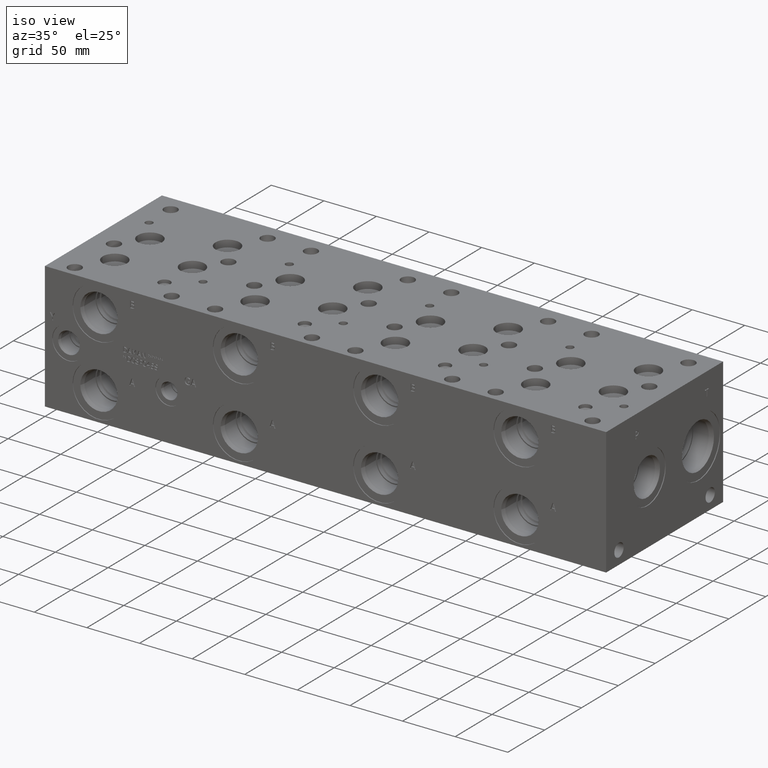
[diagram: clean part render]
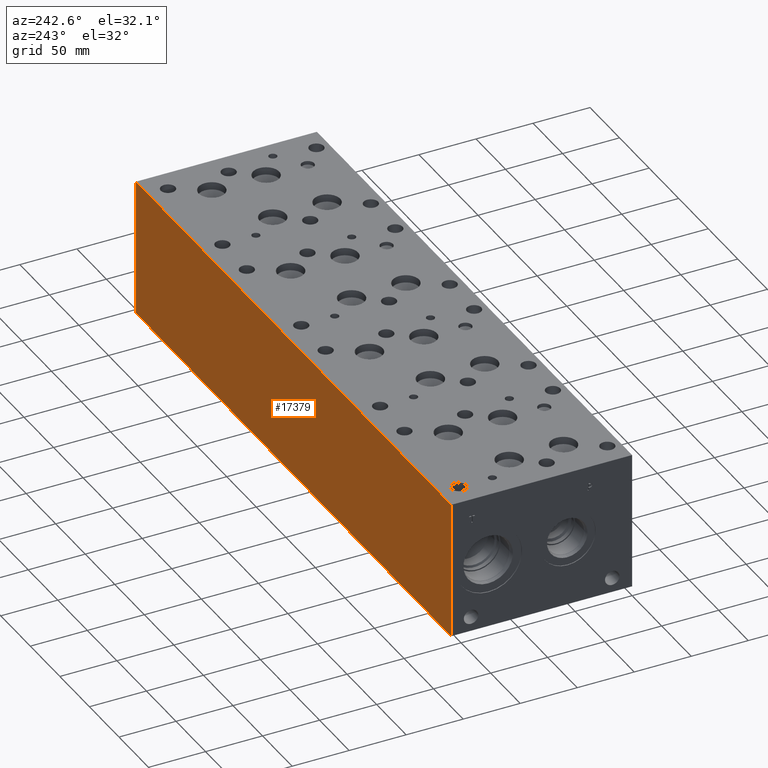
[diagram: tour spotlight — one face highlighted and labeled with its STEP entity id]
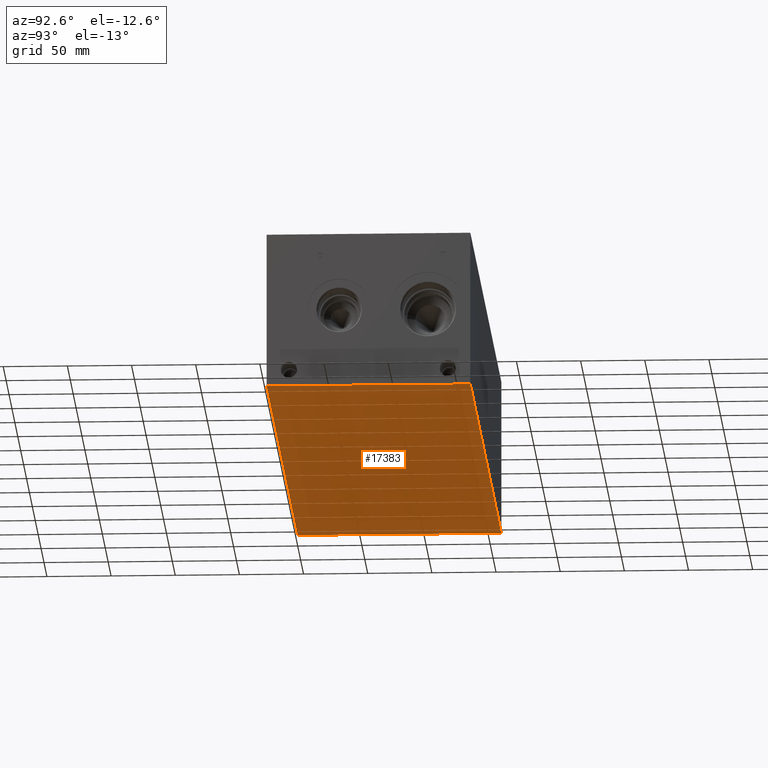
[diagram: tour spotlight — one face highlighted and labeled with its STEP entity id]
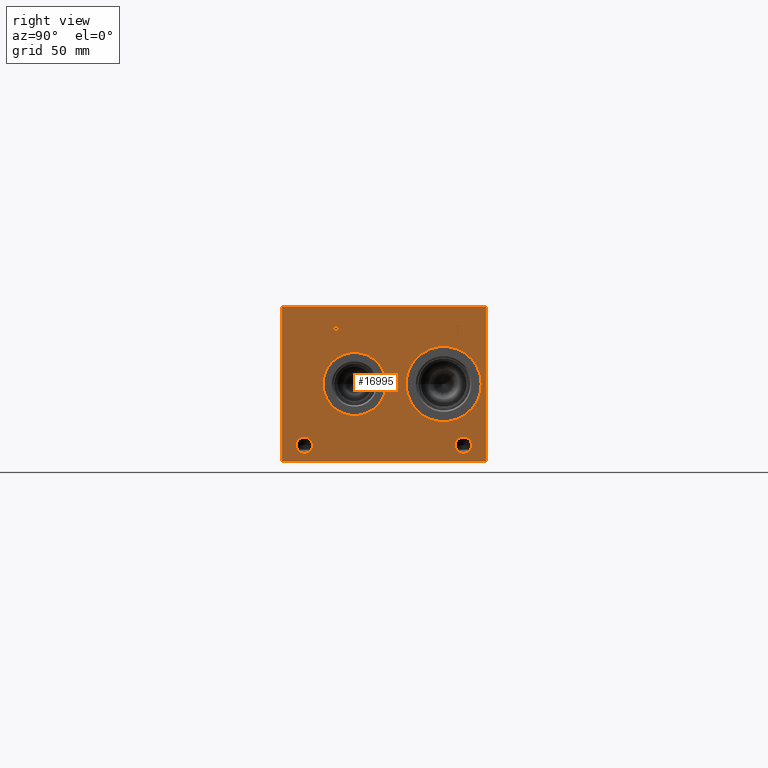
[diagram: tour spotlight — one face highlighted and labeled with its STEP entity id]
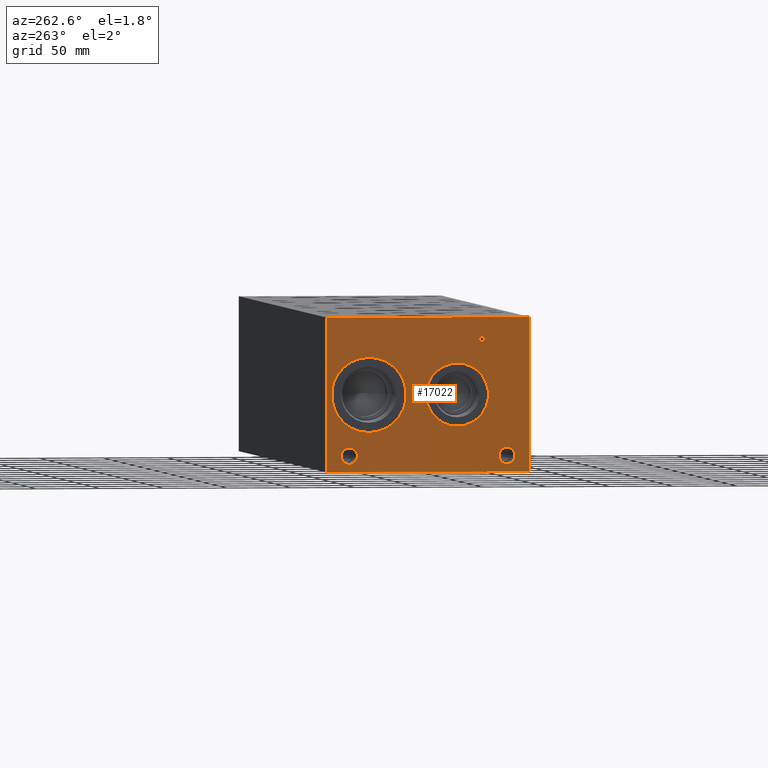
[diagram: tour spotlight — one face highlighted and labeled with its STEP entity id]
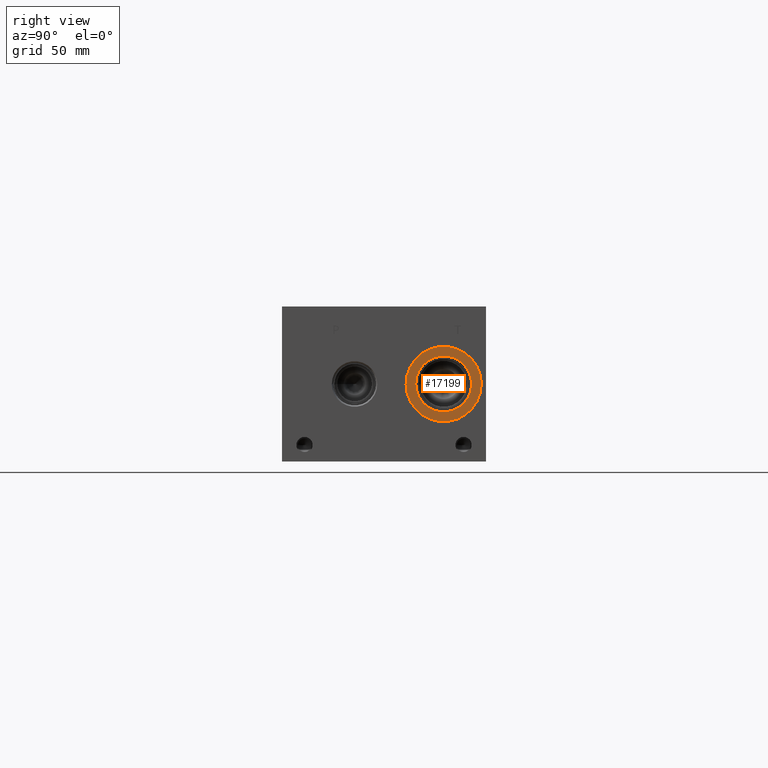
[diagram: tour spotlight — one face highlighted and labeled with its STEP entity id]
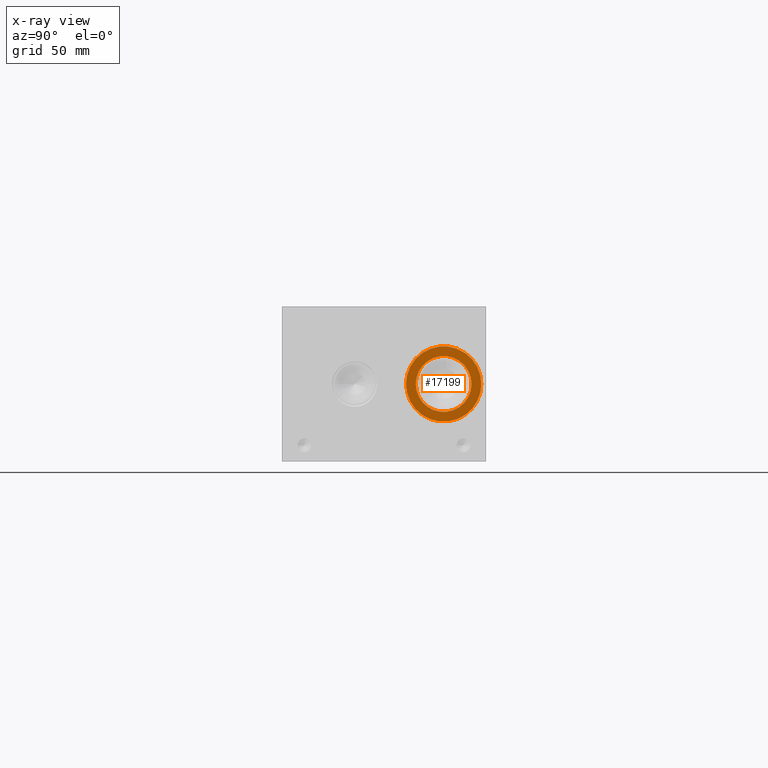
[diagram: x-ray of the same camera — body ghosted, this tour face saturated]
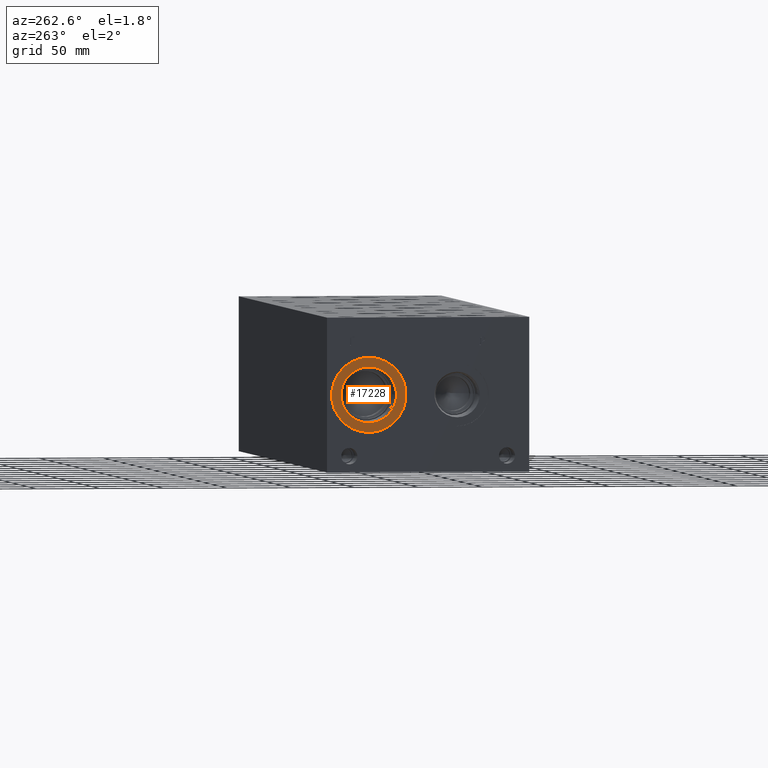
[diagram: tour spotlight — one face highlighted and labeled with its STEP entity id]
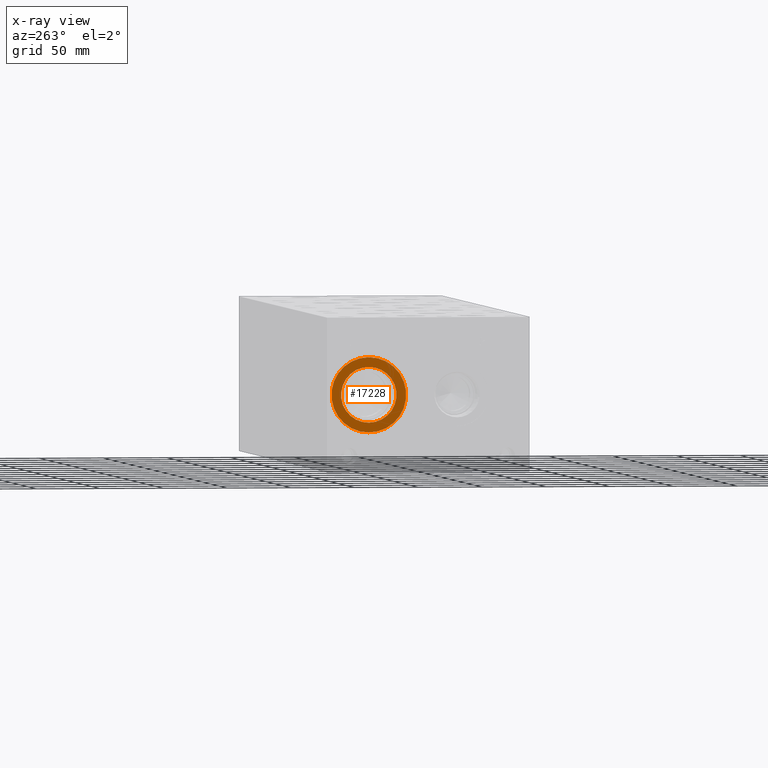
[diagram: x-ray of the same camera — body ghosted, this tour face saturated]
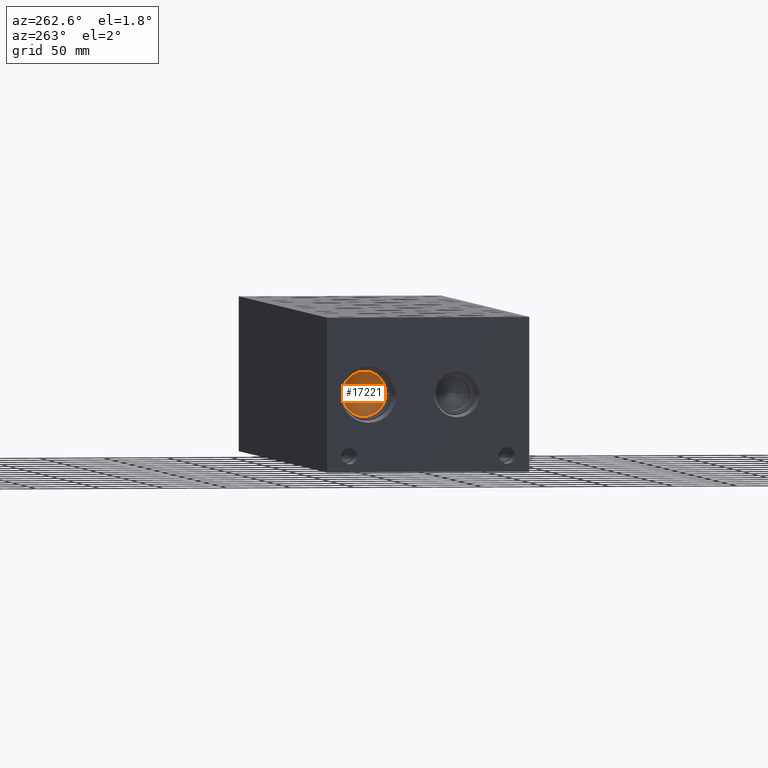
[diagram: tour spotlight — one face highlighted and labeled with its STEP entity id]
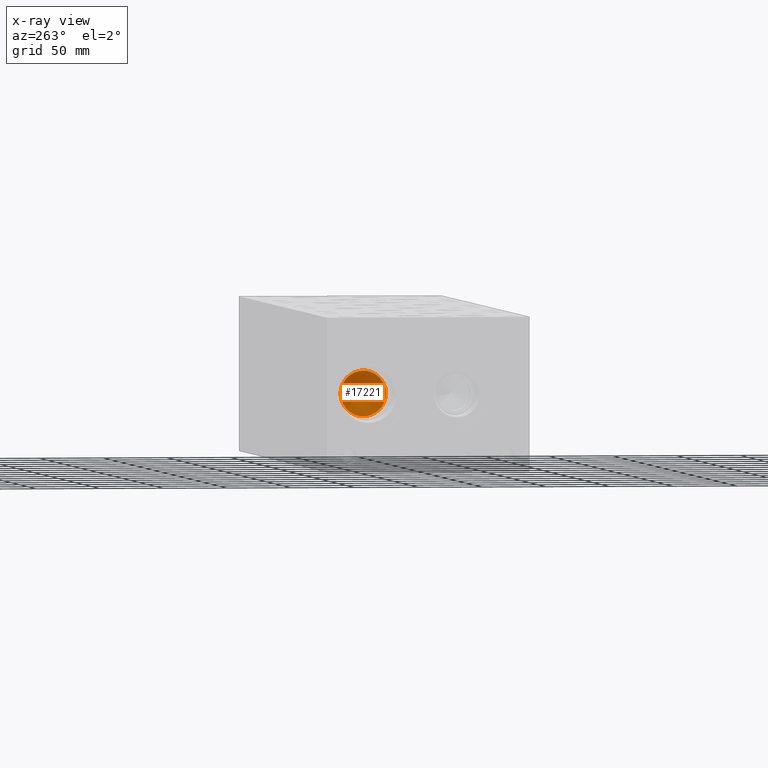
[diagram: x-ray of the same camera — body ghosted, this tour face saturated]
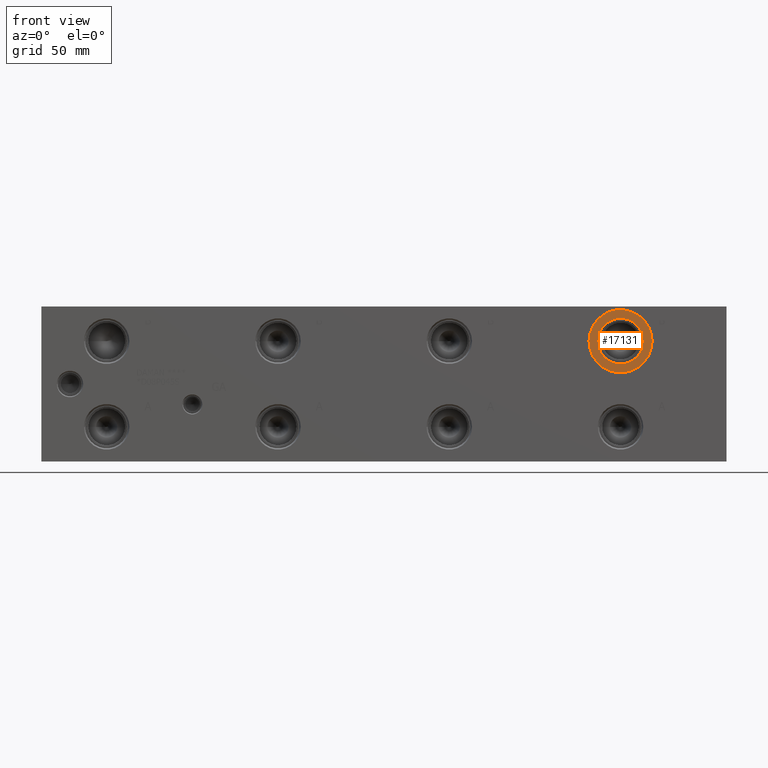
[diagram: tour spotlight — one face highlighted and labeled with its STEP entity id]
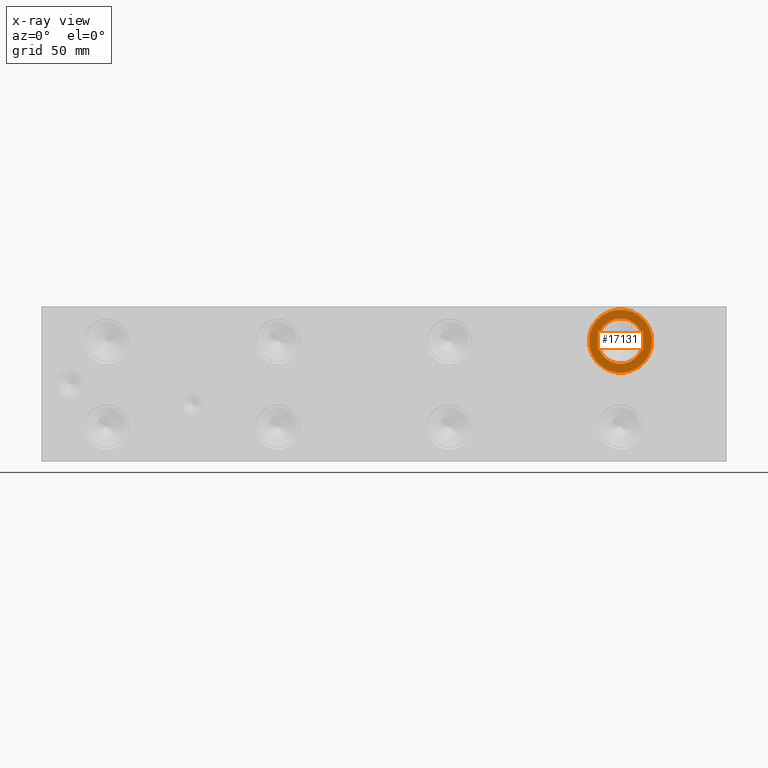
[diagram: x-ray of the same camera — body ghosted, this tour face saturated]
A machine part: a face-by-face anatomy tour. The part has 917 B-rep faces; the first image is the clean iso view, then the 8 largest visible faces are spotlighted one at a time (largest first), each with its STEP entity span.

Face 1 — auxiliary view, entity #17379. In plain terms, the highlighted planar face has unit normal (0, 1, 0).
Definition (entity closure, byte-faithful):
#2536=FACE_OUTER_BOUND('',#3585,.T.);
#3585=EDGE_LOOP('',(#15351,#15352,#15353,#15354));
#4724=LINE('',#28052,#6183);
#4784=LINE('',#28325,#6243);
#5099=LINE('',#30207,#6558);
#5100=LINE('',#30208,#6559);
#6183=VECTOR('',#20557,10.);
#6243=VECTOR('',#20671,10.);
#6558=VECTOR('',#22824,10.);
#6559=VECTOR('',#22825,10.);
#7534=VERTEX_POINT('',#28049);
#7535=VERTEX_POINT('',#28051);
#7592=VERTEX_POINT('',#28321);
#7593=VERTEX_POINT('',#28323);
#9692=EDGE_CURVE('',#7534,#7535,#4724,.T.);
#9776=EDGE_CURVE('',#7592,#7593,#4784,.T.);
#10653=EDGE_CURVE('',#7534,#7592,#5099,.T.);
#10654=EDGE_CURVE('',#7535,#7593,#5100,.T.);
#15351=ORIENTED_EDGE('',*,*,#10653,.T.);
#15352=ORIENTED_EDGE('',*,*,#9776,.T.);
#15353=ORIENTED_EDGE('',*,*,#10654,.F.);
#15354=ORIENTED_EDGE('',*,*,#9692,.F.);
#15921=PLANE('',#18718);
#17379=ADVANCED_FACE('',(#2536),#15921,.T.);
#18718=AXIS2_PLACEMENT_3D('',#30206,#22822,#22823);
#20557=DIRECTION('',(0.,0.,1.));
#20671=DIRECTION('',(0.,0.,1.));
#22822=DIRECTION('center_axis',(0.,1.,0.));
#22823=DIRECTION('ref_axis',(-1.,0.,0.));
#22824=DIRECTION('',(-1.,0.,0.));
#22825=DIRECTION('',(-1.,0.,0.));
#28049=CARTESIAN_POINT('',(533.4,158.75,0.));
#28051=CARTESIAN_POINT('',(533.4,158.75,120.65));
#28052=CARTESIAN_POINT('',(533.4,158.75,0.));
#28321=CARTESIAN_POINT('',(0.,158.75,0.));
#28323=CARTESIAN_POINT('',(0.,158.75,120.65));
#28325=CARTESIAN_POINT('',(0.,158.75,0.));
#30206=CARTESIAN_POINT('Origin',(533.4,158.75,0.));
#30207=CARTESIAN_POINT('',(533.4,158.75,0.));
#30208=CARTESIAN_POINT('',(533.4,158.75,120.65));

Face 2 — auxiliary view, entity #17383. In plain terms, the highlighted planar face has unit normal (0, 0, 1).
Definition (entity closure, byte-faithful):
#2540=FACE_OUTER_BOUND('',#3641,.T.);
#3641=EDGE_LOOP('',(#15477,#15478,#15479,#15480));
#3675=LINE('',#22905,#5134);
#4723=LINE('',#28050,#6182);
#4782=LINE('',#28322,#6241);
#5099=LINE('',#30207,#6558);
#5134=VECTOR('',#18784,10.);
#6182=VECTOR('',#20556,10.);
#6241=VECTOR('',#20669,10.);
#6558=VECTOR('',#22824,10.);
#6582=VERTEX_POINT('',#22903);
#6583=VERTEX_POINT('',#22904);
#7534=VERTEX_POINT('',#28049);
#7592=VERTEX_POINT('',#28321);
#8275=EDGE_CURVE('',#6582,#6583,#3675,.T.);
#9691=EDGE_CURVE('',#6583,#7534,#4723,.T.);
#9774=EDGE_CURVE('',#7592,#6582,#4782,.T.);
#10653=EDGE_CURVE('',#7534,#7592,#5099,.T.);
#15477=ORIENTED_EDGE('',*,*,#8275,.F.);
#15478=ORIENTED_EDGE('',*,*,#9774,.F.);
#15479=ORIENTED_EDGE('',*,*,#10653,.F.);
#15480=ORIENTED_EDGE('',*,*,#9691,.F.);
#15925=PLANE('',#18722);
#17383=ADVANCED_FACE('',(#2540),#15925,.F.);
#18722=AXIS2_PLACEMENT_3D('',#30212,#22832,#22833);
#18784=DIRECTION('',(1.,0.,0.));
#20556=DIRECTION('',(0.,1.,0.));
#20669=DIRECTION('',(0.,-1.,0.));
#22824=DIRECTION('',(-1.,0.,0.));
#22832=DIRECTION('center_axis',(0.,0.,1.));
#22833=DIRECTION('ref_axis',(1.,0.,0.));
#22903=CARTESIAN_POINT('',(0.,0.,0.));
#22904=CARTESIAN_POINT('',(533.4,0.,0.));
#22905=CARTESIAN_POINT('',(0.,0.,0.));
#28049=CARTESIAN_POINT('',(533.4,158.75,0.));
#28050=CARTESIAN_POINT('',(533.4,0.,0.));
#28321=CARTESIAN_POINT('',(0.,158.75,0.));
#28322=CARTESIAN_POINT('',(0.,158.75,0.));
#30207=CARTESIAN_POINT('',(533.4,158.75,0.));
#30212=CARTESIAN_POINT('Origin',(266.7,79.375,0.));

Face 3 — right view, entity #16995. In plain terms, the highlighted planar face has unit normal (1, 0, 0).
Definition (entity closure, byte-faithful):
#506=CIRCLE('',#17773,29.2862);
#507=CIRCLE('',#17774,29.2862);
#508=CIRCLE('',#17775,24.5618);
#509=CIRCLE('',#17776,24.5618);
#510=CIRCLE('',#17777,6.35);
#511=CIRCLE('',#17778,6.35);
#512=CIRCLE('',#17779,6.35);
#513=CIRCLE('',#17780,6.35);
#1416=B_SPLINE_CURVE_WITH_KNOTS('',2,(#27951,#27952,#27953,#27954),
 .UNSPECIFIED.,.F.,.F.,(3,1,3),(0.,1.,2.),.UNSPECIFIED.);
#1418=B_SPLINE_CURVE_WITH_KNOTS('',2,(#27972,#27973,#27974,#27975),
 .UNSPECIFIED.,.F.,.F.,(3,1,3),(0.,1.,2.),.UNSPECIFIED.);
#1420=B_SPLINE_CURVE_WITH_KNOTS('',2,(#28021,#28022,#28023,#28024),
 .UNSPECIFIED.,.F.,.F.,(3,1,3),(0.,1.,2.),.UNSPECIFIED.);
#1422=B_SPLINE_CURVE_WITH_KNOTS('',2,(#28039,#28040,#28041,#28042),
 .UNSPECIFIED.,.F.,.F.,(3,1,3),(0.,1.,2.),.UNSPECIFIED.);
#1503=FACE_BOUND('',#3133,.T.);
#1504=FACE_BOUND('',#3134,.T.);
#1505=FACE_BOUND('',#3135,.T.);
#1506=FACE_BOUND('',#3136,.T.);
#1507=FACE_BOUND('',#3137,.T.);
#1508=FACE_BOUND('',#3138,.T.);
#2152=FACE_OUTER_BOUND('',#3132,.T.);
#3132=EDGE_LOOP('',(#13506,#13507,#13508,#13509));
#3133=EDGE_LOOP('',(#13510,#13511));
#3134=EDGE_LOOP('',(#13512,#13513));
#3135=EDGE_LOOP('',(#13514,#13515));
#3136=EDGE_LOOP('',(#13516,#13517));
#3137=EDGE_LOOP('',(#13518,#13519,#13520,#13521,#13522,#13523,#13524,#13525));
#3138=EDGE_LOOP('',(#13526,#13527,#13528,#13529,#13530,#13531,#13532,#13533,
#13534));
#3676=LINE('',#22907,#5135);
#4707=LINE('',#27984,#6166);
#4710=LINE('',#27990,#6169);
#4713=LINE('',#27996,#6172);
#4716=LINE('',#28002,#6175);
#4719=LINE('',#28008,#6178);
#4723=LINE('',#28050,#6182);
#4724=LINE('',#28052,#6183);
#4725=LINE('',#28053,#6184);
#4726=LINE('',#28072,#6185);
#4727=LINE('',#28074,#6186);
#4728=LINE('',#28076,#6187);
#4729=LINE('',#28078,#6188);
#4730=LINE('',#28080,#6189);
#4731=LINE('',#28082,#6190);
#4732=LINE('',#28084,#6191);
#4733=LINE('',#28085,#6192);
#5135=VECTOR('',#18785,10.);
#6166=VECTOR('',#20528,10.);
#6169=VECTOR('',#20533,10.);
#6172=VECTOR('',#20538,10.);
#6175=VECTOR('',#20543,10.);
#6178=VECTOR('',#20548,10.);
#6182=VECTOR('',#20556,10.);
#6183=VECTOR('',#20557,10.);
#6184=VECTOR('',#20558,10.);
#6185=VECTOR('',#20575,10.);
#6186=VECTOR('',#20576,10.);
#6187=VECTOR('',#20577,10.);
#6188=VECTOR('',#20578,10.);
#6189=VECTOR('',#20579,10.);
#6190=VECTOR('',#20580,10.);
#6191=VECTOR('',#20581,10.);
#6192=VECTOR('',#20582,10.);
#6583=VERTEX_POINT('',#22904);
#6584=VERTEX_POINT('',#22906);
#7516=VERTEX_POINT('',#27949);
#7517=VERTEX_POINT('',#27950);
#7520=VERTEX_POINT('',#27971);
#7522=VERTEX_POINT('',#27983);
#7524=VERTEX_POINT('',#27989);
#7526=VERTEX_POINT('',#27995);
#7528=VERTEX_POINT('',#28001);
#7530=VERTEX_POINT('',#28007);
#7532=VERTEX_POINT('',#28020);
#7534=VERTEX_POINT('',#28049);
#7535=VERTEX_POINT('',#28051);
#7536=VERTEX_POINT('',#28054);
#7537=VERTEX_POINT('',#28055);
#7538=VERTEX_POINT('',#28058);
#7539=VERTEX_POINT('',#28059);
#7540=VERTEX_POINT('',#28062);
#7541=VERTEX_POINT('',#28063);
#7542=VERTEX_POINT('',#28066);
#7543=VERTEX_POINT('',#28067);
#7544=VERTEX_POINT('',#28070);
#7545=VERTEX_POINT('',#28071);
#7546=VERTEX_POINT('',#28073);
#7547=VERTEX_POINT('',#28075);
#7548=VERTEX_POINT('',#28077);
#7549=VERTEX_POINT('',#28079);
#7550=VERTEX_POINT('',#28081);
#7551=VERTEX_POINT('',#28083);
#8276=EDGE_CURVE('',#6583,#6584,#3676,.T.);
#9664=EDGE_CURVE('',#7516,#7517,#1416,.T.);
#9668=EDGE_CURVE('',#7520,#7516,#1418,.T.);
#9671=EDGE_CURVE('',#7522,#7520,#4707,.T.);
#9674=EDGE_CURVE('',#7524,#7522,#4710,.T.);
#9677=EDGE_CURVE('',#7526,#7524,#4713,.T.);
#9680=EDGE_CURVE('',#7528,#7526,#4716,.T.);
#9683=EDGE_CURVE('',#7530,#7528,#4719,.T.);
#9686=EDGE_CURVE('',#7532,#7530,#1420,.T.);
#9689=EDGE_CURVE('',#7517,#7532,#1422,.T.);
#9691=EDGE_CURVE('',#6583,#7534,#4723,.T.);
#9692=EDGE_CURVE('',#7534,#7535,#4724,.T.);
#9693=EDGE_CURVE('',#6584,#7535,#4725,.T.);
#9694=EDGE_CURVE('',#7536,#7537,#506,.T.);
#9695=EDGE_CURVE('',#7537,#7536,#507,.T.);
#9696=EDGE_CURVE('',#7538,#7539,#508,.T.);
#9697=EDGE_CURVE('',#7539,#7538,#509,.T.);
#9698=EDGE_CURVE('',#7540,#7541,#510,.T.);
#9699=EDGE_CURVE('',#7541,#7540,#511,.T.);
#9700=EDGE_CURVE('',#7542,#7543,#512,.T.);
#9701=EDGE_CURVE('',#7543,#7542,#513,.T.);
#9702=EDGE_CURVE('',#7544,#7545,#4726,.T.);
#9703=EDGE_CURVE('',#7545,#7546,#4727,.T.);
#9704=EDGE_CURVE('',#7546,#7547,#4728,.T.);
#9705=EDGE_CURVE('',#7547,#7548,#4729,.T.);
#9706=EDGE_CURVE('',#7548,#7549,#4730,.T.);
#9707=EDGE_CURVE('',#7549,#7550,#4731,.T.);
#9708=EDGE_CURVE('',#7550,#7551,#4732,.T.);
#9709=EDGE_CURVE('',#7551,#7544,#4733,.T.);
#13506=ORIENTED_EDGE('',*,*,#9691,.T.);
#13507=ORIENTED_EDGE('',*,*,#9692,.T.);
#13508=ORIENTED_EDGE('',*,*,#9693,.F.);
#13509=ORIENTED_EDGE('',*,*,#8276,.F.);
#13510=ORIENTED_EDGE('',*,*,#9694,.T.);
#13511=ORIENTED_EDGE('',*,*,#9695,.T.);
#13512=ORIENTED_EDGE('',*,*,#9696,.T.);
#13513=ORIENTED_EDGE('',*,*,#9697,.T.);
#13514=ORIENTED_EDGE('',*,*,#9698,.T.);
#13515=ORIENTED_EDGE('',*,*,#9699,.T.);
#13516=ORIENTED_EDGE('',*,*,#9700,.T.);
#13517=ORIENTED_EDGE('',*,*,#9701,.T.);
#13518=ORIENTED_EDGE('',*,*,#9702,.T.);
#13519=ORIENTED_EDGE('',*,*,#9703,.T.);
#13520=ORIENTED_EDGE('',*,*,#9704,.T.);
#13521=ORIENTED_EDGE('',*,*,#9705,.T.);
#13522=ORIENTED_EDGE('',*,*,#9706,.T.);
#13523=ORIENTED_EDGE('',*,*,#9707,.T.);
#13524=ORIENTED_EDGE('',*,*,#9708,.T.);
#13525=ORIENTED_EDGE('',*,*,#9709,.T.);
#13526=ORIENTED_EDGE('',*,*,#9664,.T.);
#13527=ORIENTED_EDGE('',*,*,#9689,.T.);
#13528=ORIENTED_EDGE('',*,*,#9686,.T.);
#13529=ORIENTED_EDGE('',*,*,#9683,.T.);
#13530=ORIENTED_EDGE('',*,*,#9680,.T.);
#13531=ORIENTED_EDGE('',*,*,#9677,.T.);
#13532=ORIENTED_EDGE('',*,*,#9674,.T.);
#13533=ORIENTED_EDGE('',*,*,#9671,.T.);
#13534=ORIENTED_EDGE('',*,*,#9668,.T.);
#15835=PLANE('',#17772);
#16995=ADVANCED_FACE('',(#2152,#1503,#1504,#1505,#1506,#1507,#1508),#15835,
 .T.);
#17772=AXIS2_PLACEMENT_3D('',#28048,#20554,#20555);
#17773=AXIS2_PLACEMENT_3D('',#28056,#20559,#20560);
#17774=AXIS2_PLACEMENT_3D('',#28057,#20561,#20562);
#17775=AXIS2_PLACEMENT_3D('',#28060,#20563,#20564);
#17776=AXIS2_PLACEMENT_3D('',#28061,#20565,#20566);
#17777=AXIS2_PLACEMENT_3D('',#28064,#20567,#20568);
#17778=AXIS2_PLACEMENT_3D('',#28065,#20569,#20570);
#17779=AXIS2_PLACEMENT_3D('',#28068,#20571,#20572);
#17780=AXIS2_PLACEMENT_3D('',#28069,#20573,#20574);
#18785=DIRECTION('',(0.,0.,1.));
#20528=DIRECTION('',(0.,1.,0.));
#20533=DIRECTION('',(0.,0.,1.));
#20538=DIRECTION('',(0.,-1.,0.));
#20543=DIRECTION('',(0.,0.,-1.));
#20548=DIRECTION('',(0.,-1.,0.));
#20554=DIRECTION('center_axis',(1.,0.,0.));
#20555=DIRECTION('ref_axis',(0.,1.,0.));
#20556=DIRECTION('',(0.,1.,0.));
#20557=DIRECTION('',(0.,0.,1.));
#20558=DIRECTION('',(0.,1.,0.));
#20559=DIRECTION('center_axis',(-1.,0.,0.));
#20560=DIRECTION('ref_axis',(0.,1.,0.));
#20561=DIRECTION('center_axis',(-1.,0.,0.));
#20562=DIRECTION('ref_axis',(0.,1.,0.));
#20563=DIRECTION('center_axis',(-1.,0.,0.));
#20564=DIRECTION('ref_axis',(0.,1.,0.));
#20565=DIRECTION('center_axis',(-1.,0.,0.));
#20566=DIRECTION('ref_axis',(0.,1.,0.));
#20567=DIRECTION('center_axis',(-1.,0.,0.));
#20568=DIRECTION('ref_axis',(0.,1.,0.));
#20569=DIRECTION('center_axis',(-1.,0.,0.));
#20570=DIRECTION('ref_axis',(0.,1.,0.));
#20571=DIRECTION('center_axis',(-1.,0.,0.));
#20572=DIRECTION('ref_axis',(0.,1.,0.));
#20573=DIRECTION('center_axis',(-1.,0.,0.));
#20574=DIRECTION('ref_axis',(0.,1.,0.));
#20575=DIRECTION('',(0.,-1.,0.));
#20576=DIRECTION('',(0.,0.,1.));
#20577=DIRECTION('',(0.,-1.,0.));
#20578=DIRECTION('',(0.,0.,1.));
#20579=DIRECTION('',(0.,1.,0.));
#20580=DIRECTION('',(0.,0.,-1.));
#20581=DIRECTION('',(0.,-1.,0.));
#20582=DIRECTION('',(0.,0.,-1.));
#22904=CARTESIAN_POINT('',(533.4,0.,0.));
#22906=CARTESIAN_POINT('',(533.4,0.,120.65));
#22907=CARTESIAN_POINT('',(533.4,0.,0.));
#27949=CARTESIAN_POINT('',(533.4,43.3721672023594,105.140768143971));
#27950=CARTESIAN_POINT('',(533.4,44.128609654532,103.622737372604));
#27951=CARTESIAN_POINT('Ctrl Pts',(533.4,43.3721672023594,105.140768143971));
#27952=CARTESIAN_POINT('Ctrl Pts',(533.4,43.7272320268486,104.898912393956));
#27953=CARTESIAN_POINT('Ctrl Pts',(533.4,44.128609654532,104.152761675827));
#27954=CARTESIAN_POINT('Ctrl Pts',(533.4,44.128609654532,103.622737372604));
#27971=CARTESIAN_POINT('',(533.4,41.7100521543883,105.536999904633));
#27972=CARTESIAN_POINT('Ctrl Pts',(533.4,41.7100521543883,105.536999904633));
#27973=CARTESIAN_POINT('Ctrl Pts',(533.4,42.2760975267624,105.536999904633));
#27974=CARTESIAN_POINT('Ctrl Pts',(533.4,43.068561048086,105.351748691856));
#27975=CARTESIAN_POINT('Ctrl Pts',(533.4,43.3721672023594,105.140768143971));
#27983=CARTESIAN_POINT('',(533.4,40.1148333776978,105.536999904633));
#27984=CARTESIAN_POINT('',(533.4,20.0574166888489,105.536999904633));
#27989=CARTESIAN_POINT('',(533.4,40.1148333776978,99.187));
#27990=CARTESIAN_POINT('',(533.4,40.1148333776978,49.5935));
#27995=CARTESIAN_POINT('',(533.4,40.9587555692373,99.187));
#27996=CARTESIAN_POINT('',(533.4,20.4793777846186,99.187));
#28001=CARTESIAN_POINT('',(533.4,40.9587555692373,101.554098829928));
#28002=CARTESIAN_POINT('',(533.4,40.9587555692373,50.7770494149639));
#28007=CARTESIAN_POINT('',(533.4,41.6740310852372,101.554098829928));
#28008=CARTESIAN_POINT('',(533.4,20.8370155426186,101.554098829928));
#28020=CARTESIAN_POINT('',(533.4,43.5728560162011,102.21276980869));
#28021=CARTESIAN_POINT('Ctrl Pts',(533.4,43.5728560162011,102.21276980869));
#28022=CARTESIAN_POINT('Ctrl Pts',(533.4,43.2435205268198,101.888580186331));
#28023=CARTESIAN_POINT('Ctrl Pts',(533.4,42.3532855320861,101.554098829928));
#28024=CARTESIAN_POINT('Ctrl Pts',(533.4,41.6740310852372,101.554098829928));
#28039=CARTESIAN_POINT('Ctrl Pts',(533.4,44.128609654532,103.622737372604));
#28040=CARTESIAN_POINT('Ctrl Pts',(533.4,44.128609654532,103.211068010877));
#28041=CARTESIAN_POINT('Ctrl Pts',(533.4,43.8352952343018,102.47006315977));
#28042=CARTESIAN_POINT('Ctrl Pts',(533.4,43.5728560162011,102.21276980869));
#28048=CARTESIAN_POINT('Origin',(533.4,0.,0.));
#28049=CARTESIAN_POINT('',(533.4,158.75,0.));
#28050=CARTESIAN_POINT('',(533.4,0.,0.));
#28051=CARTESIAN_POINT('',(533.4,158.75,120.65));
#28052=CARTESIAN_POINT('',(533.4,158.75,0.));
#28053=CARTESIAN_POINT('',(533.4,0.,120.65));
#28054=CARTESIAN_POINT('',(533.4,155.1178,60.325));
#28055=CARTESIAN_POINT('',(533.4,96.5454,60.325));
#28056=CARTESIAN_POINT('Origin',(533.4,125.8316,60.325));
#28057=CARTESIAN_POINT('Origin',(533.4,125.8316,60.325));
#28058=CARTESIAN_POINT('',(533.4,81.0514,60.325));
#28059=CARTESIAN_POINT('',(533.4,31.9278,60.325));
#28060=CARTESIAN_POINT('Origin',(533.4,56.4896,60.325));
#28061=CARTESIAN_POINT('Origin',(533.4,56.4896,60.325));
#28062=CARTESIAN_POINT('',(533.4,147.6248,12.7));
#28063=CARTESIAN_POINT('',(533.4,134.9248,12.7));
#28064=CARTESIAN_POINT('Origin',(533.4,141.2748,12.7));
#28065=CARTESIAN_POINT('Origin',(533.4,141.2748,12.7));
#28066=CARTESIAN_POINT('',(533.4,23.7998,12.7));
#28067=CARTESIAN_POINT('',(533.4,11.0998,12.7));
#28068=CARTESIAN_POINT('Origin',(533.4,17.4498,12.7));
#28069=CARTESIAN_POINT('Origin',(533.4,17.4498,12.7));
#28070=CARTESIAN_POINT('',(533.4,137.182765271453,99.187));
#28071=CARTESIAN_POINT('',(533.4,136.338843079914,99.187));
#28072=CARTESIAN_POINT('',(533.4,68.5913826357265,99.187));
#28073=CARTESIAN_POINT('',(533.4,136.338843079914,104.785703319482));
#28074=CARTESIAN_POINT('',(533.4,136.338843079914,49.5935));
#28075=CARTESIAN_POINT('',(533.4,134.208454132978,104.785703319482));
#28076=CARTESIAN_POINT('',(533.4,68.1694215399568,104.785703319482));
#28077=CARTESIAN_POINT('',(533.4,134.208454132978,105.536999904633));
#28078=CARTESIAN_POINT('',(533.4,134.208454132978,52.3928516597408));
#28079=CARTESIAN_POINT('',(533.4,139.313154218388,105.536999904633));
#28080=CARTESIAN_POINT('',(533.4,67.1042270664892,105.536999904633));
#28081=CARTESIAN_POINT('',(533.4,139.313154218388,104.785703319482));
#28082=CARTESIAN_POINT('',(533.4,139.313154218388,52.7684999523163));
#28083=CARTESIAN_POINT('',(533.4,137.182765271453,104.785703319482));
#28084=CARTESIAN_POINT('',(533.4,69.656577109194,104.785703319482));
#28085=CARTESIAN_POINT('',(533.4,137.182765271453,52.3928516597408));

Face 4 — auxiliary view, entity #17022. In plain terms, the highlighted planar face has unit normal (-1, 0, 0).
Definition (entity closure, byte-faithful):
#514=CIRCLE('',#17800,29.2862);
#515=CIRCLE('',#17801,29.2862);
#516=CIRCLE('',#17802,24.5618);
#517=CIRCLE('',#17803,24.5618);
#518=CIRCLE('',#17804,6.35);
#519=CIRCLE('',#17805,6.35);
#520=CIRCLE('',#17806,6.35);
#521=CIRCLE('',#17807,6.35);
#1432=B_SPLINE_CURVE_WITH_KNOTS('',2,(#28223,#28224,#28225,#28226),
 .UNSPECIFIED.,.F.,.F.,(3,1,3),(0.,1.,2.),.UNSPECIFIED.);
#1434=B_SPLINE_CURVE_WITH_KNOTS('',2,(#28244,#28245,#28246,#28247),
 .UNSPECIFIED.,.F.,.F.,(3,1,3),(0.,1.,2.),.UNSPECIFIED.);
#1436=B_SPLINE_CURVE_WITH_KNOTS('',2,(#28293,#28294,#28295,#28296),
 .UNSPECIFIED.,.F.,.F.,(3,1,3),(0.,1.,2.),.UNSPECIFIED.);
#1438=B_SPLINE_CURVE_WITH_KNOTS('',2,(#28311,#28312,#28313,#28314),
 .UNSPECIFIED.,.F.,.F.,(3,1,3),(0.,1.,2.),.UNSPECIFIED.);
#1510=FACE_BOUND('',#3167,.T.);
#1511=FACE_BOUND('',#3168,.T.);
#1512=FACE_BOUND('',#3169,.T.);
#1513=FACE_BOUND('',#3170,.T.);
#1514=FACE_BOUND('',#3171,.T.);
#1515=FACE_BOUND('',#3172,.T.);
#2179=FACE_OUTER_BOUND('',#3166,.T.);
#3166=EDGE_LOOP('',(#13655,#13656,#13657,#13658));
#3167=EDGE_LOOP('',(#13659,#13660));
#3168=EDGE_LOOP('',(#13661,#13662));
#3169=EDGE_LOOP('',(#13663,#13664));
#3170=EDGE_LOOP('',(#13665,#13666));
#3171=EDGE_LOOP('',(#13667,#13668,#13669,#13670,#13671,#13672,#13673,#13674));
#3172=EDGE_LOOP('',(#13675,#13676,#13677,#13678,#13679,#13680,#13681,#13682,
#13683));
#3678=LINE('',#22910,#5137);
#4766=LINE('',#28256,#6225);
#4769=LINE('',#28262,#6228);
#4772=LINE('',#28268,#6231);
#4775=LINE('',#28274,#6234);
#4778=LINE('',#28280,#6237);
#4782=LINE('',#28322,#6241);
#4783=LINE('',#28324,#6242);
#4784=LINE('',#28325,#6243);
#4785=LINE('',#28344,#6244);
#4786=LINE('',#28346,#6245);
#4787=LINE('',#28348,#6246);
#4788=LINE('',#28350,#6247);
#4789=LINE('',#28352,#6248);
#4790=LINE('',#28354,#6249);
#4791=LINE('',#28356,#6250);
#4792=LINE('',#28357,#6251);
#5137=VECTOR('',#18787,10.);
#6225=VECTOR('',#20641,10.);
#6228=VECTOR('',#20646,10.);
#6231=VECTOR('',#20651,10.);
#6234=VECTOR('',#20656,10.);
#6237=VECTOR('',#20661,10.);
#6241=VECTOR('',#20669,10.);
#6242=VECTOR('',#20670,10.);
#6243=VECTOR('',#20671,10.);
#6244=VECTOR('',#20688,10.);
#6245=VECTOR('',#20689,10.);
#6246=VECTOR('',#20690,10.);
#6247=VECTOR('',#20691,10.);
#6248=VECTOR('',#20692,10.);
#6249=VECTOR('',#20693,10.);
#6250=VECTOR('',#20694,10.);
#6251=VECTOR('',#20695,10.);
#6582=VERTEX_POINT('',#22903);
#6585=VERTEX_POINT('',#22908);
#7574=VERTEX_POINT('',#28221);
#7575=VERTEX_POINT('',#28222);
#7578=VERTEX_POINT('',#28243);
#7580=VERTEX_POINT('',#28255);
#7582=VERTEX_POINT('',#28261);
#7584=VERTEX_POINT('',#28267);
#7586=VERTEX_POINT('',#28273);
#7588=VERTEX_POINT('',#28279);
#7590=VERTEX_POINT('',#28292);
#7592=VERTEX_POINT('',#28321);
#7593=VERTEX_POINT('',#28323);
#7594=VERTEX_POINT('',#28326);
#7595=VERTEX_POINT('',#28327);
#7596=VERTEX_POINT('',#28330);
#7597=VERTEX_POINT('',#28331);
#7598=VERTEX_POINT('',#28334);
#7599=VERTEX_POINT('',#28335);
#7600=VERTEX_POINT('',#28338);
#7601=VERTEX_POINT('',#28339);
#7602=VERTEX_POINT('',#28342);
#7603=VERTEX_POINT('',#28343);
#7604=VERTEX_POINT('',#28345);
#7605=VERTEX_POINT('',#28347);
#7606=VERTEX_POINT('',#28349);
#7607=VERTEX_POINT('',#28351);
#7608=VERTEX_POINT('',#28353);
#7609=VERTEX_POINT('',#28355);
#8278=EDGE_CURVE('',#6582,#6585,#3678,.T.);
#9747=EDGE_CURVE('',#7574,#7575,#1432,.T.);
#9751=EDGE_CURVE('',#7578,#7574,#1434,.T.);
#9754=EDGE_CURVE('',#7580,#7578,#4766,.T.);
#9757=EDGE_CURVE('',#7582,#7580,#4769,.T.);
#9760=EDGE_CURVE('',#7584,#7582,#4772,.T.);
#9763=EDGE_CURVE('',#7586,#7584,#4775,.T.);
#9766=EDGE_CURVE('',#7588,#7586,#4778,.T.);
#9769=EDGE_CURVE('',#7590,#7588,#1436,.T.);
#9772=EDGE_CURVE('',#7575,#7590,#1438,.T.);
#9774=EDGE_CURVE('',#7592,#6582,#4782,.T.);
#9775=EDGE_CURVE('',#7593,#6585,#4783,.T.);
#9776=EDGE_CURVE('',#7592,#7593,#4784,.T.);
#9777=EDGE_CURVE('',#7594,#7595,#514,.T.);
#9778=EDGE_CURVE('',#7595,#7594,#515,.T.);
#9779=EDGE_CURVE('',#7596,#7597,#516,.T.);
#9780=EDGE_CURVE('',#7597,#7596,#517,.T.);
#9781=EDGE_CURVE('',#7598,#7599,#518,.T.);
#9782=EDGE_CURVE('',#7599,#7598,#519,.T.);
#9783=EDGE_CURVE('',#7600,#7601,#520,.T.);
#9784=EDGE_CURVE('',#7601,#7600,#521,.T.);
#9785=EDGE_CURVE('',#7602,#7603,#4785,.T.);
#9786=EDGE_CURVE('',#7603,#7604,#4786,.T.);
#9787=EDGE_CURVE('',#7604,#7605,#4787,.T.);
#9788=EDGE_CURVE('',#7605,#7606,#4788,.T.);
#9789=EDGE_CURVE('',#7606,#7607,#4789,.T.);
#9790=EDGE_CURVE('',#7607,#7608,#4790,.T.);
#9791=EDGE_CURVE('',#7608,#7609,#4791,.T.);
#9792=EDGE_CURVE('',#7609,#7602,#4792,.T.);
#13655=ORIENTED_EDGE('',*,*,#9774,.T.);
#13656=ORIENTED_EDGE('',*,*,#8278,.T.);
#13657=ORIENTED_EDGE('',*,*,#9775,.F.);
#13658=ORIENTED_EDGE('',*,*,#9776,.F.);
#13659=ORIENTED_EDGE('',*,*,#9777,.T.);
#13660=ORIENTED_EDGE('',*,*,#9778,.T.);
#13661=ORIENTED_EDGE('',*,*,#9779,.T.);
#13662=ORIENTED_EDGE('',*,*,#9780,.T.);
#13663=ORIENTED_EDGE('',*,*,#9781,.T.);
#13664=ORIENTED_EDGE('',*,*,#9782,.T.);
#13665=ORIENTED_EDGE('',*,*,#9783,.T.);
#13666=ORIENTED_EDGE('',*,*,#9784,.T.);
#13667=ORIENTED_EDGE('',*,*,#9785,.T.);
#13668=ORIENTED_EDGE('',*,*,#9786,.T.);
#13669=ORIENTED_EDGE('',*,*,#9787,.T.);
#13670=ORIENTED_EDGE('',*,*,#9788,.T.);
#13671=ORIENTED_EDGE('',*,*,#9789,.T.);
#13672=ORIENTED_EDGE('',*,*,#9790,.T.);
#13673=ORIENTED_EDGE('',*,*,#9791,.T.);
#13674=ORIENTED_EDGE('',*,*,#9792,.T.);
#13675=ORIENTED_EDGE('',*,*,#9747,.T.);
#13676=ORIENTED_EDGE('',*,*,#9772,.T.);
#13677=ORIENTED_EDGE('',*,*,#9769,.T.);
#13678=ORIENTED_EDGE('',*,*,#9766,.T.);
#13679=ORIENTED_EDGE('',*,*,#9763,.T.);
#13680=ORIENTED_EDGE('',*,*,#9760,.T.);
#13681=ORIENTED_EDGE('',*,*,#9757,.T.);
#13682=ORIENTED_EDGE('',*,*,#9754,.T.);
#13683=ORIENTED_EDGE('',*,*,#9751,.T.);
#15854=PLANE('',#17799);
#17022=ADVANCED_FACE('',(#2179,#1510,#1511,#1512,#1513,#1514,#1515),#15854,
 .T.);
#17799=AXIS2_PLACEMENT_3D('',#28320,#20667,#20668);
#17800=AXIS2_PLACEMENT_3D('',#28328,#20672,#20673);
#17801=AXIS2_PLACEMENT_3D('',#28329,#20674,#20675);
#17802=AXIS2_PLACEMENT_3D('',#28332,#20676,#20677);
#17803=AXIS2_PLACEMENT_3D('',#28333,#20678,#20679);
#17804=AXIS2_PLACEMENT_3D('',#28336,#20680,#20681);
#17805=AXIS2_PLACEMENT_3D('',#28337,#20682,#20683);
#17806=AXIS2_PLACEMENT_3D('',#28340,#20684,#20685);
#17807=AXIS2_PLACEMENT_3D('',#28341,#20686,#20687);
#18787=DIRECTION('',(0.,0.,1.));
#20641=DIRECTION('',(0.,-1.,0.));
#20646=DIRECTION('',(0.,-2.79741238752512E-15,1.));
#20651=DIRECTION('',(0.,1.,0.));
#20656=DIRECTION('',(0.,3.75218139805001E-15,-1.));
#20661=DIRECTION('',(0.,1.,0.));
#20667=DIRECTION('center_axis',(-1.,0.,0.));
#20668=DIRECTION('ref_axis',(0.,-1.,0.));
#20669=DIRECTION('',(0.,-1.,0.));
#20670=DIRECTION('',(0.,-1.,0.));
#20671=DIRECTION('',(0.,0.,1.));
#20672=DIRECTION('center_axis',(1.,0.,0.));
#20673=DIRECTION('ref_axis',(0.,0.,1.));
#20674=DIRECTION('center_axis',(1.,0.,0.));
#20675=DIRECTION('ref_axis',(0.,0.,1.));
#20676=DIRECTION('center_axis',(1.,0.,0.));
#20677=DIRECTION('ref_axis',(0.,0.,1.));
#20678=DIRECTION('center_axis',(1.,0.,0.));
#20679=DIRECTION('ref_axis',(0.,0.,1.));
#20680=DIRECTION('center_axis',(1.,0.,0.));
#20681=DIRECTION('ref_axis',(0.,1.,0.));
#20682=DIRECTION('center_axis',(1.,0.,0.));
#20683=DIRECTION('ref_axis',(0.,1.,0.));
#20684=DIRECTION('center_axis',(1.,0.,0.));
#20685=DIRECTION('ref_axis',(0.,1.,0.));
#20686=DIRECTION('center_axis',(1.,0.,0.));
#20687=DIRECTION('ref_axis',(0.,1.,0.));
#20688=DIRECTION('',(0.,1.,0.));
#20689=DIRECTION('',(0.,-3.17280044688051E-15,1.));
#20690=DIRECTION('',(0.,1.,0.));
#20691=DIRECTION('',(0.,0.,1.));
#20692=DIRECTION('',(0.,-1.,0.));
#20693=DIRECTION('',(0.,0.,-1.));
#20694=DIRECTION('',(0.,1.,0.));
#20695=DIRECTION('',(0.,3.17280044688052E-15,-1.));
#22903=CARTESIAN_POINT('',(0.,0.,0.));
#22908=CARTESIAN_POINT('',(0.,0.,120.65));
#22910=CARTESIAN_POINT('',(0.,0.,0.));
#28221=CARTESIAN_POINT('',(0.,35.5710327976406,105.140768143971));
#28222=CARTESIAN_POINT('',(0.,34.814590345468,103.622737372604));
#28223=CARTESIAN_POINT('Ctrl Pts',(0.,35.5710327976406,105.140768143971));
#28224=CARTESIAN_POINT('Ctrl Pts',(0.,35.2159679731514,104.898912393956));
#28225=CARTESIAN_POINT('Ctrl Pts',(0.,34.814590345468,104.152761675827));
#28226=CARTESIAN_POINT('Ctrl Pts',(0.,34.814590345468,103.622737372604));
#28243=CARTESIAN_POINT('',(0.,37.2331478456117,105.536999904633));
#28244=CARTESIAN_POINT('Ctrl Pts',(0.,37.2331478456117,105.536999904633));
#28245=CARTESIAN_POINT('Ctrl Pts',(0.,36.6671024732376,105.536999904633));
#28246=CARTESIAN_POINT('Ctrl Pts',(0.,35.874638951914,105.351748691856));
#28247=CARTESIAN_POINT('Ctrl Pts',(0.,35.5710327976406,105.140768143971));
#28255=CARTESIAN_POINT('',(0.,38.8283666223022,105.536999904633));
#28256=CARTESIAN_POINT('',(0.,98.7891833111511,105.536999904633));
#28261=CARTESIAN_POINT('',(0.,38.8283666223022,99.187));
#28262=CARTESIAN_POINT('',(0.,38.8283666223024,49.5934999999998));
#28267=CARTESIAN_POINT('',(0.,37.9844444307627,99.187));
#28268=CARTESIAN_POINT('',(0.,98.3672222153814,99.187));
#28273=CARTESIAN_POINT('',(0.,37.9844444307627,101.554098829928));
#28274=CARTESIAN_POINT('',(0.,37.9844444307629,50.7770494149637));
#28279=CARTESIAN_POINT('',(0.,37.2691689147628,101.554098829928));
#28280=CARTESIAN_POINT('',(0.,98.0095844573814,101.554098829928));
#28292=CARTESIAN_POINT('',(0.,35.3703439837989,102.21276980869));
#28293=CARTESIAN_POINT('Ctrl Pts',(0.,35.3703439837989,102.21276980869));
#28294=CARTESIAN_POINT('Ctrl Pts',(0.,35.6996794731802,101.888580186331));
#28295=CARTESIAN_POINT('Ctrl Pts',(0.,36.5899144679139,101.554098829928));
#28296=CARTESIAN_POINT('Ctrl Pts',(0.,37.2691689147628,101.554098829928));
#28311=CARTESIAN_POINT('Ctrl Pts',(0.,34.814590345468,103.622737372604));
#28312=CARTESIAN_POINT('Ctrl Pts',(0.,34.814590345468,103.211068010877));
#28313=CARTESIAN_POINT('Ctrl Pts',(0.,35.1079047656982,102.47006315977));
#28314=CARTESIAN_POINT('Ctrl Pts',(0.,35.3703439837989,102.21276980869));
#28320=CARTESIAN_POINT('Origin',(0.,158.75,0.));
#28321=CARTESIAN_POINT('',(0.,158.75,0.));
#28322=CARTESIAN_POINT('',(0.,158.75,0.));
#28323=CARTESIAN_POINT('',(0.,158.75,120.65));
#28324=CARTESIAN_POINT('',(0.,158.75,120.65));
#28325=CARTESIAN_POINT('',(0.,158.75,0.));
#28326=CARTESIAN_POINT('',(0.,125.8316,89.6112));
#28327=CARTESIAN_POINT('',(0.,125.8316,31.0388));
#28328=CARTESIAN_POINT('Origin',(0.,125.8316,60.325));
#28329=CARTESIAN_POINT('Origin',(0.,125.8316,60.325));
#28330=CARTESIAN_POINT('',(0.,56.4896,84.8868));
#28331=CARTESIAN_POINT('',(6.93889390390723E-17,56.4896,35.7632));
#28332=CARTESIAN_POINT('Origin',(0.,56.4896,60.325));
#28333=CARTESIAN_POINT('Origin',(0.,56.4896,60.325));
#28334=CARTESIAN_POINT('',(0.,147.6248,12.7));
#28335=CARTESIAN_POINT('',(0.,134.9248,12.7));
#28336=CARTESIAN_POINT('Origin',(0.,141.2748,12.7));
#28337=CARTESIAN_POINT('Origin',(0.,141.2748,12.7));
#28338=CARTESIAN_POINT('',(0.,23.7998,12.7));
#28339=CARTESIAN_POINT('',(0.,11.0998,12.7));
#28340=CARTESIAN_POINT('Origin',(0.,17.4498,12.7));
#28341=CARTESIAN_POINT('Origin',(0.,17.4498,12.7));
#28342=CARTESIAN_POINT('',(0.,139.880434728547,99.187));
#28343=CARTESIAN_POINT('',(0.,140.724356920087,99.187));
#28344=CARTESIAN_POINT('',(0.,149.315217364274,99.187));
#28345=CARTESIAN_POINT('',(0.,140.724356920087,104.785703319482));
#28346=CARTESIAN_POINT('',(0.,140.724356920087,49.5935));
#28347=CARTESIAN_POINT('',(0.,142.854745867022,104.785703319482));
#28348=CARTESIAN_POINT('',(0.,149.737178460043,104.785703319482));
#28349=CARTESIAN_POINT('',(0.,142.854745867022,105.536999904633));
#28350=CARTESIAN_POINT('',(0.,142.854745867022,52.3928516597408));
#28351=CARTESIAN_POINT('',(0.,137.750045781612,105.536999904633));
#28352=CARTESIAN_POINT('',(0.,150.802372933511,105.536999904633));
#28353=CARTESIAN_POINT('',(0.,137.750045781612,104.785703319482));
#28354=CARTESIAN_POINT('',(0.,137.750045781612,52.7684999523163));
#28355=CARTESIAN_POINT('',(0.,139.880434728547,104.785703319482));
#28356=CARTESIAN_POINT('',(0.,148.250022890806,104.785703319482));
#28357=CARTESIAN_POINT('',(0.,139.880434728547,52.3928516597407));

Face 5 — right view, entity #17199. An x-ray twin of the same camera follows (body ghosted, this face saturated) — the face is partly hidden behind the body. In plain terms, the highlighted planar face has unit normal (1, 0, 0).
Definition (entity closure, byte-faithful):
#759=CIRCLE('',#18222,29.2862);
#760=CIRCLE('',#18223,29.2862);
#761=CIRCLE('',#18224,21.7551);
#1541=FACE_BOUND('',#3375,.T.);
#2356=FACE_OUTER_BOUND('',#3374,.T.);
#3374=EDGE_LOOP('',(#14500,#14501));
#3375=EDGE_LOOP('',(#14502));
#7872=VERTEX_POINT('',#29192);
#7873=VERTEX_POINT('',#29193);
#7874=VERTEX_POINT('',#29196);
#10188=EDGE_CURVE('',#7872,#7873,#759,.T.);
#10189=EDGE_CURVE('',#7873,#7872,#760,.T.);
#10190=EDGE_CURVE('',#7874,#7874,#761,.T.);
#14500=ORIENTED_EDGE('',*,*,#10188,.T.);
#14501=ORIENTED_EDGE('',*,*,#10189,.T.);
#14502=ORIENTED_EDGE('',*,*,#10190,.F.);
#15889=PLANE('',#18221);
#17199=ADVANCED_FACE('',(#2356,#1541),#15889,.T.);
#18221=AXIS2_PLACEMENT_3D('',#29191,#21680,#21681);
#18222=AXIS2_PLACEMENT_3D('',#29194,#21682,#21683);
#18223=AXIS2_PLACEMENT_3D('',#29195,#21684,#21685);
#18224=AXIS2_PLACEMENT_3D('',#29197,#21686,#21687);
#21680=DIRECTION('center_axis',(1.,0.,0.));
#21681=DIRECTION('ref_axis',(0.,1.,0.));
#21682=DIRECTION('center_axis',(1.,0.,0.));
#21683=DIRECTION('ref_axis',(0.,1.,0.));
#21684=DIRECTION('center_axis',(1.,0.,0.));
#21685=DIRECTION('ref_axis',(0.,1.,0.));
#21686=DIRECTION('center_axis',(1.,0.,0.));
#21687=DIRECTION('ref_axis',(0.,1.,0.));
#29191=CARTESIAN_POINT('Origin',(532.6126,125.8316,60.325));
#29192=CARTESIAN_POINT('',(532.6126,155.1178,60.325));
#29193=CARTESIAN_POINT('',(532.6126,96.5454,60.325));
#29194=CARTESIAN_POINT('Origin',(532.6126,125.8316,60.325));
#29195=CARTESIAN_POINT('Origin',(532.6126,125.8316,60.325));
#29196=CARTESIAN_POINT('',(532.6126,104.0765,60.325));
#29197=CARTESIAN_POINT('Origin',(532.6126,125.8316,60.325));

Face 6 — auxiliary view, entity #17228. An x-ray twin of the same camera follows (body ghosted, this face saturated) — the face is partly hidden behind the body. In plain terms, the highlighted planar face has unit normal (1, 0, 0).
Definition (entity closure, byte-faithful):
#800=CIRCLE('',#18291,29.2862);
#801=CIRCLE('',#18292,29.2862);
#802=CIRCLE('',#18294,21.7551);
#803=CIRCLE('',#18295,21.7551);
#1547=FACE_BOUND('',#3410,.T.);
#2385=FACE_OUTER_BOUND('',#3409,.T.);
#3409=EDGE_LOOP('',(#14640,#14641));
#3410=EDGE_LOOP('',(#14642,#14643));
#7917=VERTEX_POINT('',#29328);
#7918=VERTEX_POINT('',#29330);
#7919=VERTEX_POINT('',#29334);
#7920=VERTEX_POINT('',#29335);
#10252=EDGE_CURVE('',#7917,#7918,#800,.T.);
#10253=EDGE_CURVE('',#7918,#7917,#801,.T.);
#10254=EDGE_CURVE('',#7919,#7920,#802,.T.);
#10255=EDGE_CURVE('',#7920,#7919,#803,.T.);
#14640=ORIENTED_EDGE('',*,*,#10253,.F.);
#14641=ORIENTED_EDGE('',*,*,#10252,.F.);
#14642=ORIENTED_EDGE('',*,*,#10254,.T.);
#14643=ORIENTED_EDGE('',*,*,#10255,.T.);
#15895=PLANE('',#18293);
#17228=ADVANCED_FACE('',(#2385,#1547),#15895,.F.);
#18291=AXIS2_PLACEMENT_3D('',#29331,#21843,#21844);
#18292=AXIS2_PLACEMENT_3D('',#29332,#21845,#21846);
#18293=AXIS2_PLACEMENT_3D('',#29333,#21847,#21848);
#18294=AXIS2_PLACEMENT_3D('',#29336,#21849,#21850);
#18295=AXIS2_PLACEMENT_3D('',#29337,#21851,#21852);
#21843=DIRECTION('center_axis',(1.,0.,0.));
#21844=DIRECTION('ref_axis',(0.,0.,-1.));
#21845=DIRECTION('center_axis',(1.,0.,0.));
#21846=DIRECTION('ref_axis',(0.,0.,-1.));
#21847=DIRECTION('center_axis',(1.,0.,0.));
#21848=DIRECTION('ref_axis',(0.,0.,-1.));
#21849=DIRECTION('center_axis',(1.,0.,0.));
#21850=DIRECTION('ref_axis',(0.,0.,-1.));
#21851=DIRECTION('center_axis',(1.,0.,0.));
#21852=DIRECTION('ref_axis',(0.,0.,-1.));
#29328=CARTESIAN_POINT('',(0.7874,125.8316,31.0388));
#29330=CARTESIAN_POINT('',(0.7874,125.8316,89.6112));
#29331=CARTESIAN_POINT('Origin',(0.7874,125.8316,60.325));
#29332=CARTESIAN_POINT('Origin',(0.7874,125.8316,60.325));
#29333=CARTESIAN_POINT('Origin',(0.7874,125.8316,82.0801));
#29334=CARTESIAN_POINT('',(0.7874,125.8316,82.0801));
#29335=CARTESIAN_POINT('',(0.7874,125.8316,38.5699));
#29336=CARTESIAN_POINT('Origin',(0.7874,125.8316,60.325));
#29337=CARTESIAN_POINT('Origin',(0.7874,125.8316,60.325));

Face 7 — auxiliary view, entity #17221. An x-ray twin of the same camera follows (body ghosted, this face saturated) — the face is partly hidden behind the body. In plain terms, the highlighted conical surface has half-angle 60 deg.
Definition (entity closure, byte-faithful):
#251=CONICAL_SURFACE('',#18274,8.9281,1.0471975511966);
#790=CIRCLE('',#18275,17.8562);
#791=CIRCLE('',#18276,17.8562);
#2378=FACE_OUTER_BOUND('',#3401,.T.);
#3401=EDGE_LOOP('',(#14606,#14607,#14608,#14609));
#4968=LINE('',#29300,#6427);
#6427=VECTOR('',#21807,8.9281);
#7906=VERTEX_POINT('',#29296);
#7907=VERTEX_POINT('',#29297);
#7908=VERTEX_POINT('',#29299);
#10236=EDGE_CURVE('',#7906,#7907,#790,.T.);
#10237=EDGE_CURVE('',#7907,#7908,#4968,.T.);
#10238=EDGE_CURVE('',#7907,#7906,#791,.T.);
#14606=ORIENTED_EDGE('',*,*,#10236,.T.);
#14607=ORIENTED_EDGE('',*,*,#10237,.T.);
#14608=ORIENTED_EDGE('',*,*,#10237,.F.);
#14609=ORIENTED_EDGE('',*,*,#10238,.T.);
#17221=ADVANCED_FACE('',(#2378),#251,.F.);
#18274=AXIS2_PLACEMENT_3D('',#29295,#21803,#21804);
#18275=AXIS2_PLACEMENT_3D('',#29298,#21805,#21806);
#18276=AXIS2_PLACEMENT_3D('',#29301,#21808,#21809);
#21803=DIRECTION('center_axis',(-1.,0.,0.));
#21804=DIRECTION('ref_axis',(0.,1.,0.));
#21805=DIRECTION('center_axis',(-1.,0.,0.));
#21806=DIRECTION('ref_axis',(0.,1.,0.));
#21807=DIRECTION('',(0.5,0.866025403784439,-1.06057523872491E-16));
#21808=DIRECTION('center_axis',(-1.,0.,0.));
#21809=DIRECTION('ref_axis',(0.,1.,0.));
#29295=CARTESIAN_POINT('Origin',(40.0440309383519,125.8316,60.325));
#29296=CARTESIAN_POINT('',(34.88939,143.6878,60.325));
#29297=CARTESIAN_POINT('',(34.88939,107.9754,60.325));
#29298=CARTESIAN_POINT('Origin',(34.88939,125.8316,60.325));
#29299=CARTESIAN_POINT('',(45.1986718767038,125.8316,60.325));
#29300=CARTESIAN_POINT('',(40.0440309383519,116.9035,60.325));
#29301=CARTESIAN_POINT('Origin',(34.88939,125.8316,60.325));

Face 8 — front view, entity #17131. An x-ray twin of the same camera follows (body ghosted, this face saturated) — the face is partly hidden behind the body. In plain terms, the highlighted planar face has unit normal (0, -1, 0).
Definition (entity closure, byte-faithful):
#680=CIRCLE('',#18075,24.5618);
#681=CIRCLE('',#18076,24.5618);
#682=CIRCLE('',#18077,17.7546);
#1527=FACE_BOUND('',#3293,.T.);
#2288=FACE_OUTER_BOUND('',#3292,.T.);
#3292=EDGE_LOOP('',(#14194,#14195));
#3293=EDGE_LOOP('',(#14196));
#7782=VERTEX_POINT('',#28901);
#7783=VERTEX_POINT('',#28902);
#7784=VERTEX_POINT('',#28905);
#10055=EDGE_CURVE('',#7782,#7783,#680,.T.);
#10056=EDGE_CURVE('',#7783,#7782,#681,.T.);
#10057=EDGE_CURVE('',#7784,#7784,#682,.T.);
#14194=ORIENTED_EDGE('',*,*,#10055,.T.);
#14195=ORIENTED_EDGE('',*,*,#10056,.T.);
#14196=ORIENTED_EDGE('',*,*,#10057,.F.);
#15875=PLANE('',#18074);
#17131=ADVANCED_FACE('',(#2288,#1527),#15875,.T.);
#18074=AXIS2_PLACEMENT_3D('',#28900,#21332,#21333);
#18075=AXIS2_PLACEMENT_3D('',#28903,#21334,#21335);
#18076=AXIS2_PLACEMENT_3D('',#28904,#21336,#21337);
#18077=AXIS2_PLACEMENT_3D('',#28906,#21338,#21339);
#21332=DIRECTION('center_axis',(0.,-1.,0.));
#21333=DIRECTION('ref_axis',(1.,0.,0.));
#21334=DIRECTION('center_axis',(0.,-1.,0.));
#21335=DIRECTION('ref_axis',(1.,0.,0.));
#21336=DIRECTION('center_axis',(0.,-1.,0.));
#21337=DIRECTION('ref_axis',(1.,0.,0.));
#21338=DIRECTION('center_axis',(0.,-1.,0.));
#21339=DIRECTION('ref_axis',(1.,0.,0.));
#28900=CARTESIAN_POINT('Origin',(450.85,0.7874,93.6752));
#28901=CARTESIAN_POINT('',(475.4118,0.7874,93.6752));
#28902=CARTESIAN_POINT('',(426.2882,0.7874,93.6752));
#28903=CARTESIAN_POINT('Origin',(450.85,0.7874,93.6752));
#28904=CARTESIAN_POINT('Origin',(450.85,0.7874,93.6752));
#28905=CARTESIAN_POINT('',(433.0954,0.7874,93.6752));
#28906=CARTESIAN_POINT('Origin',(450.85,0.7874,93.6752));